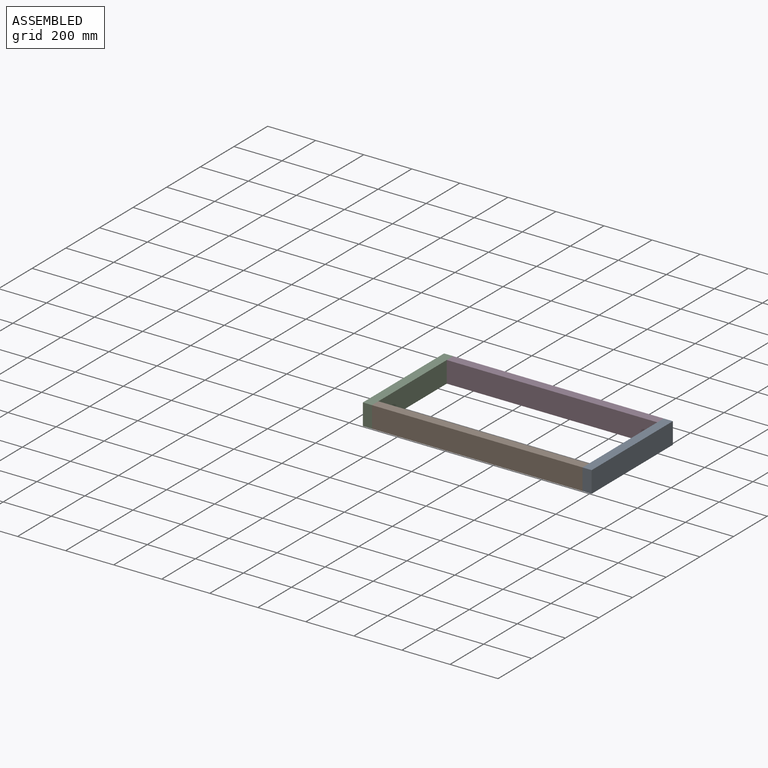
[diagram: assembled view]
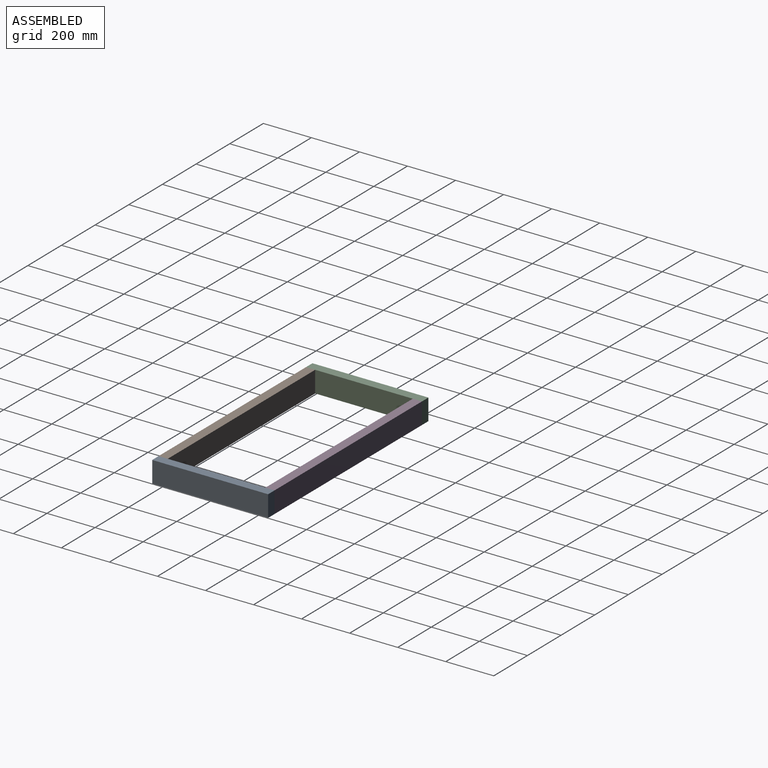
[diagram: assembled view, second angle]
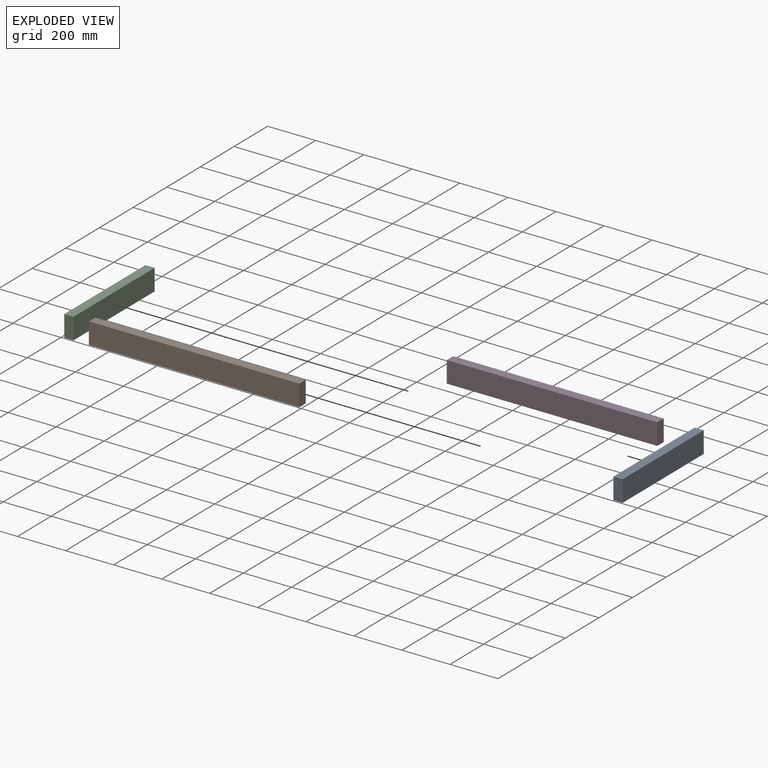
[diagram: exploded view]
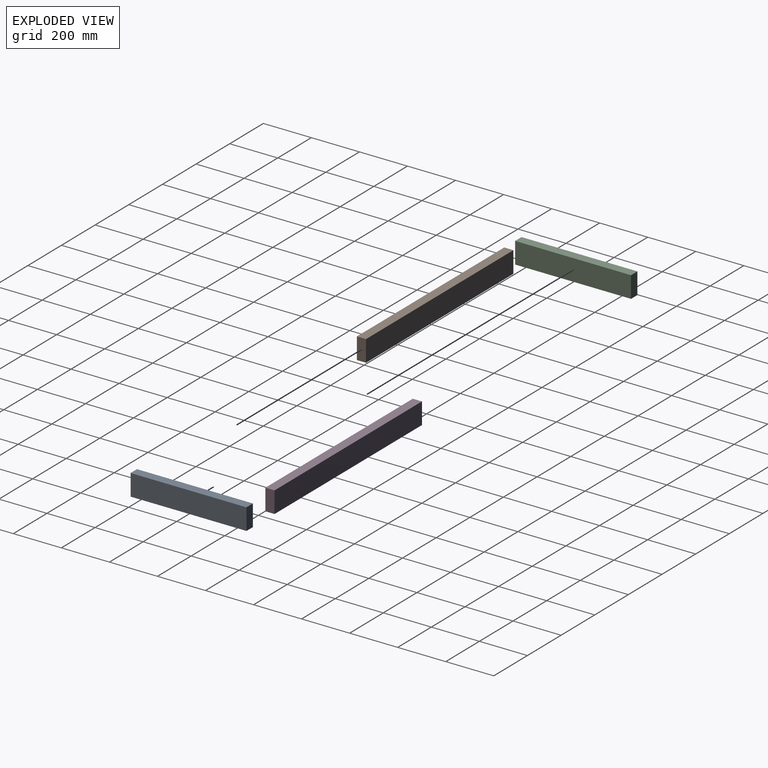
[diagram: exploded view, second angle]
ASSEMBLY  parts=4 mates=3
PART A: 6 faces, bbox 38.1x482.6x88.9 mm
  f0: plane 88.9x38.1mm, normal (0,1,0), area 3387.1mm2, adj f1,f3,f4,f5
  f1: plane 482.6x88.9mm, normal (-1,0,0), area 42903.1mm2, adj f0,f2,f4,f5
  f2: plane 88.9x38.1mm, normal (0,-1,0), area 3387.1mm2, adj f1,f3,f4,f5
  f3: plane 482.6x88.9mm, normal (1,0,0), area 42903.1mm2, adj f0,f2,f4,f5
  f4: plane 482.6x38.1mm, normal (0,0,1), area 18387.1mm2, adj f0,f1,f2,f3
  f5: plane 482.6x38.1mm, normal (0,0,-1), area 18387.1mm2, adj f0,f1,f2,f3
PART B: 6 faces, bbox 876.3x38.1x88.9 mm
  f0: plane 876.3x38.1mm, normal (0,0,1), area 33387mm2, adj f1,f3,f4,f5
  f1: plane 88.9x38.1mm, normal (-1,0,0), area 3387.1mm2, adj f0,f2,f4,f5
  f2: plane 876.3x38.1mm, normal (0,0,-1), area 33387mm2, adj f1,f3,f4,f5
  f3: plane 88.9x38.1mm, normal (1,0,0), area 3387.1mm2, adj f0,f2,f4,f5
  f4: plane 876.3x88.9mm, normal (0,-1,0), area 77903.1mm2, adj f0,f1,f2,f3
  f5: plane 876.3x88.9mm, normal (0,1,0), area 77903.1mm2, adj f0,f1,f2,f3
PART C: same geometry as A
PART D: same geometry as B
PLACE A t=(600.13,-23.68,52.77)mm
PLACE B t=(197.41,14.42,52.77)mm
PLACE C t=(-314.27,-23.68,52.77)mm
PLACE D t=(197.41,458.92,52.77)mm
MATE fastened A.f1 <-> B.f3  axis (-1,0,0) through (587.91,-23.68,141.67)mm
MATE fastened C.f3 <-> D.f1  axis (1,0,0) through (-288.39,458.92,141.67)mm
MATE fastened A.f1 <-> D.f3  axis (-1,0,0) through (587.91,458.92,141.67)mm
